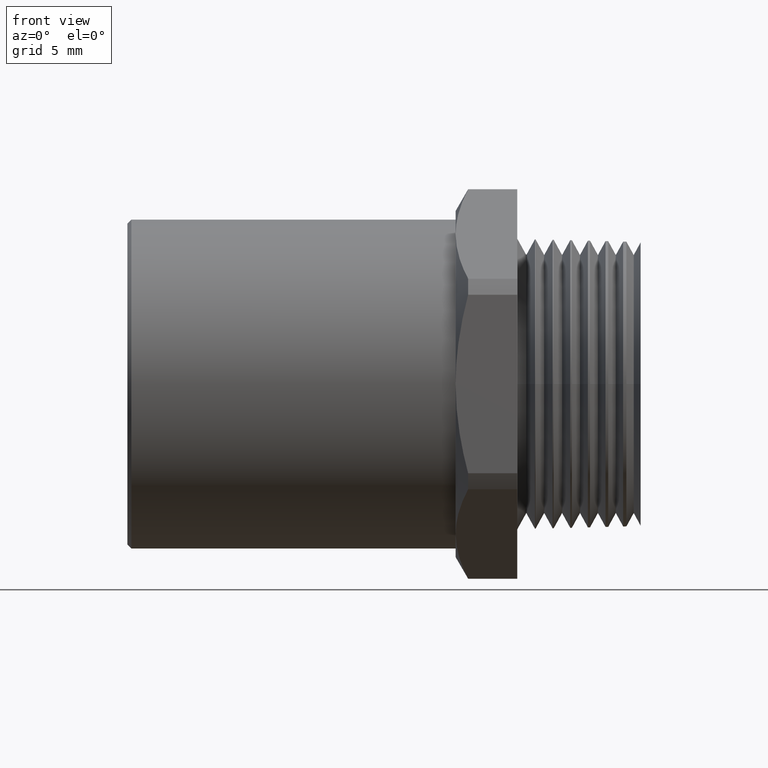
[diagram: clean part render]
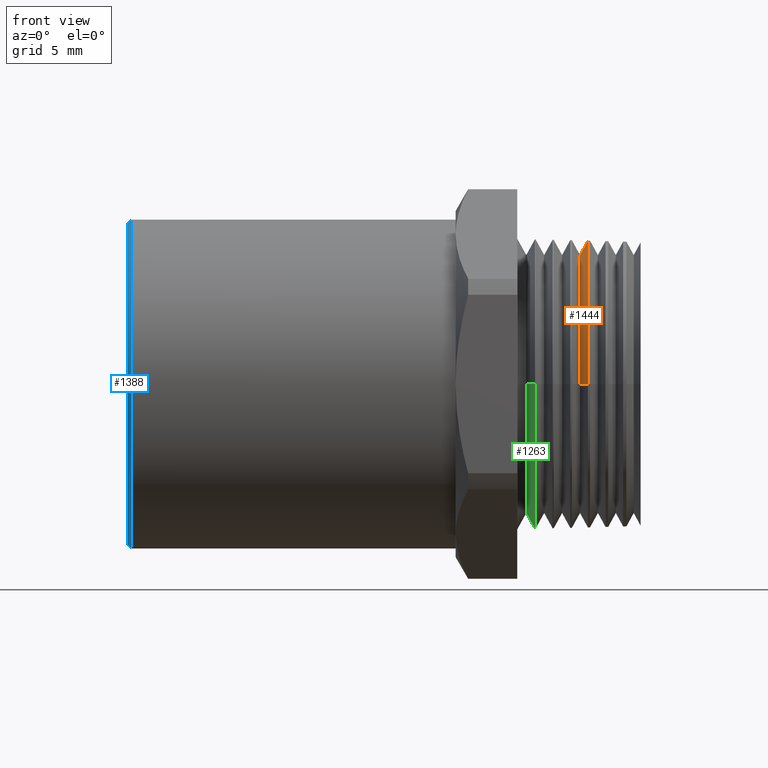
[diagram: same view with three faces highlighted in distinct colors, each labeled with its STEP entity id]
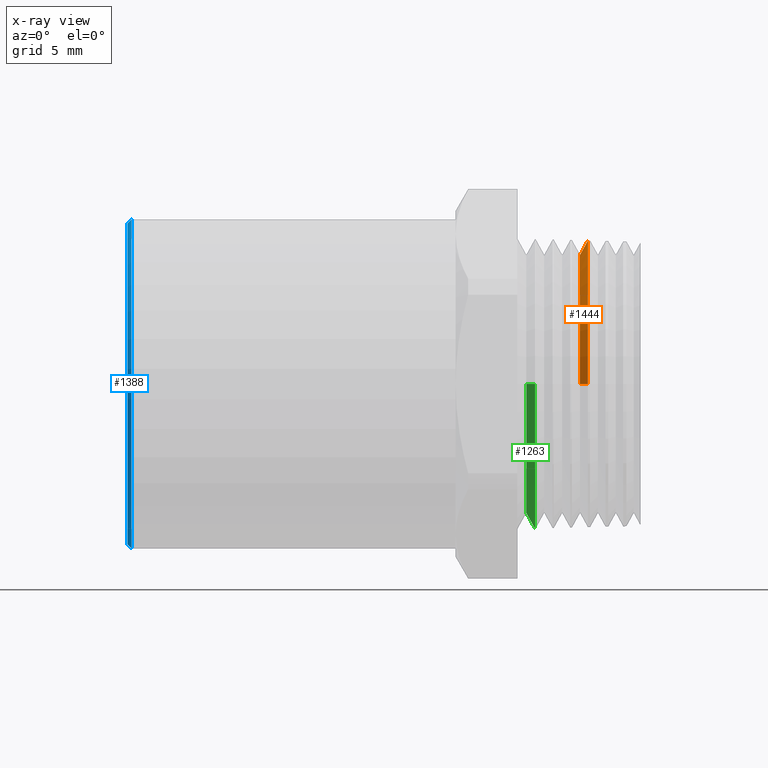
[diagram: x-ray of the same camera — body ghosted, the three highlighted faces saturated]
A machine part, front view with three faces highlighted in distinct colors.
The next image is the same camera in x-ray (body ghosted, the three faces saturated) — at least one of them is partly hidden behind the body in this view.
Their STEP definitions:

[orange] entity #1444 — the highlighted conical surface has half-angle 60 deg.
#1418 = EDGE_CURVE ( 'NONE', #1443, #1437, #2061, .T. ) ;
#1437 = VERTEX_POINT ( 'NONE', #2080 ) ;
#1443 = VERTEX_POINT ( 'NONE', #2135 ) ;
#1444 = ADVANCED_FACE ( 'NONE', ( #2134 ), #2132, .T. ) ;
#1445 = EDGE_LOOP ( 'NONE', ( #1447, #1469, #1479, #1471, #1476 ) ) ;
#1447 = ORIENTED_EDGE ( 'NONE', *, *, #1418, .T. ) ;
#1466 = EDGE_CURVE ( 'NONE', #1473, #1468, #2162, .T. ) ;
#1467 = VERTEX_POINT ( 'NONE', #2158 ) ;
#1468 = VERTEX_POINT ( 'NONE', #2157 ) ;
#1469 = ORIENTED_EDGE ( 'NONE', *, *, #1480, .T. ) ;
#1471 = ORIENTED_EDGE ( 'NONE', *, *, #1466, .F. ) ;
#1472 = EDGE_CURVE ( 'NONE', #1443, #1473, #2152, .T. ) ;
#1473 = VERTEX_POINT ( 'NONE', #2148 ) ;
#1475 = EDGE_CURVE ( 'NONE', #1468, #1467, #2147, .T. ) ;
#1476 = ORIENTED_EDGE ( 'NONE', *, *, #1472, .F. ) ;
#1479 = ORIENTED_EDGE ( 'NONE', *, *, #1475, .F. ) ;
#1480 = EDGE_CURVE ( 'NONE', #1437, #1467, #2207, .T. ) ;
#2053 = DIRECTION ( 'NONE',  ( 5.238726553505155800E-017, 1.000000000000000000, 0.0000000000000000000 ) ) ;
#2054 = DIRECTION ( 'NONE',  ( 1.000000000000000000, -3.789761643835506200E-017, 0.0000000000000000000 ) ) ;
#2055 = CARTESIAN_POINT ( 'NONE',  ( -0.1524370674708086500, -5.198673573259384000E-017, 0.0000000000000000000 ) ) ;
#2056 = AXIS2_PLACEMENT_3D ( 'NONE', #2055, #2054, #2053 ) ;
#2061 = CIRCLE ( 'NONE', #2056, 0.3259198544916922000 ) ;
#2080 = CARTESIAN_POINT ( 'NONE',  ( -0.1524370674708086800, -0.3259198544916922500, 0.0000000000000000000 ) ) ;
#2129 = DIRECTION ( 'NONE',  ( 5.238726553505155800E-017, 1.000000000000000000, 0.0000000000000000000 ) ) ;
#2130 = DIRECTION ( 'NONE',  ( 1.000000000000000000, -3.789761643835506200E-017, 0.0000000000000000000 ) ) ;
#2131 = AXIS2_PLACEMENT_3D ( 'NONE', #2133, #2130, #2129 ) ;
#2132 = CONICAL_SURFACE ( 'NONE', #2131, 0.3259198544916922000, 1.047197551196604700 ) ;
#2133 = CARTESIAN_POINT ( 'NONE',  ( -0.1524370674708086500, -5.198673573259384000E-017, 0.0000000000000000000 ) ) ;
#2134 = FACE_OUTER_BOUND ( 'NONE', #1445, .T. ) ;
#2135 = CARTESIAN_POINT ( 'NONE',  ( -0.1524370674708086200, 0.3259198544916921400, 4.208685419294223900E-017 ) ) ;
#2143 = DIRECTION ( 'NONE',  ( 4.738139246407625500E-017, 1.000000000000000000, 0.0000000000000000000 ) ) ;
#2144 = DIRECTION ( 'NONE',  ( 1.000000000000000000, -3.789761643835506200E-017, 0.0000000000000000000 ) ) ;
#2145 = CARTESIAN_POINT ( 'NONE',  ( -0.1325568008743854000, 0.0000000000000000000, 0.0000000000000000000 ) ) ;
#2146 = AXIS2_PLACEMENT_3D ( 'NONE', #2145, #2144, #2143 ) ;
#2147 = CIRCLE ( 'NONE', #2146, 0.3603534863047110900 ) ;
#2148 = CARTESIAN_POINT ( 'NONE',  ( -0.1325568008743853700, 0.3603534863047122000, 0.0000000000000000000 ) ) ;
#2149 = DIRECTION ( 'NONE',  ( 0.4999999999999939500, 0.8660254037844420400, 0.0000000000000000000 ) ) ;
#2150 = VECTOR ( 'NONE', #2149, 39.37007874015748900 ) ;
#2151 = CARTESIAN_POINT ( 'NONE',  ( -0.1524370674708086200, 0.3259198544916921400, 0.0000000000000000000 ) ) ;
#2152 = LINE ( 'NONE', #2151, #2150 ) ;
#2157 = CARTESIAN_POINT ( 'NONE',  ( -0.1325568008743854000, 0.0000000000000000000, 0.3603534863047111500 ) ) ;
#2158 = CARTESIAN_POINT ( 'NONE',  ( -0.1325568008743854000, -0.3603534863047123100, 4.413057435646553700E-017 ) ) ;
#2159 = DIRECTION ( 'NONE',  ( 4.738139246407625500E-017, 1.000000000000000000, 0.0000000000000000000 ) ) ;
#2160 = DIRECTION ( 'NONE',  ( 1.000000000000000000, -3.789761643835506200E-017, 0.0000000000000000000 ) ) ;
#2161 = AXIS2_PLACEMENT_3D ( 'NONE', #2167, #2160, #2159 ) ;
#2162 = CIRCLE ( 'NONE', #2161, 0.3603534863047110900 ) ;
#2167 = CARTESIAN_POINT ( 'NONE',  ( -0.1325568008743854000, 0.0000000000000000000, 0.0000000000000000000 ) ) ;
#2204 = DIRECTION ( 'NONE',  ( 0.4999999999999938400, -0.8660254037844422600, 1.060575238724911200E-016 ) ) ;
#2205 = VECTOR ( 'NONE', #2204, 39.37007874015748100 ) ;
#2206 = CARTESIAN_POINT ( 'NONE',  ( -0.1524370674708086800, -0.3259198544916922500, 3.991367065818219200E-017 ) ) ;
#2207 = LINE ( 'NONE', #2206, #2205 ) ;

[blue] entity #1388 — the highlighted conical surface has half-angle 45 deg.
#800 = DIRECTION ( 'NONE',  ( 0.7071067811865571200, 0.0000000000000000000, -0.7071067811865378000 ) ) ;
#801 = VECTOR ( 'NONE', #800, 39.37007874015748900 ) ;
#802 = CARTESIAN_POINT ( 'NONE',  ( -1.289999999999999600, 0.0000000000000000000, -0.4032500000000003900 ) ) ;
#807 = LINE ( 'NONE', #802, #801 ) ;
#1009 = EDGE_CURVE ( 'NONE', #1497, #1483, #807, .T. ) ;
#1164 = EDGE_CURVE ( 'NONE', #1497, #1493, #1725, .T. ) ;
#1196 = EDGE_CURVE ( 'NONE', #1490, #1483, #1777, .T. ) ;
#1374 = ORIENTED_EDGE ( 'NONE', *, *, #1009, .T. ) ;
#1382 = ORIENTED_EDGE ( 'NONE', *, *, #1491, .F. ) ;
#1383 = ORIENTED_EDGE ( 'NONE', *, *, #1164, .F. ) ;
#1388 = ADVANCED_FACE ( 'NONE', ( #1993 ), #1992, .T. ) ;
#1391 = EDGE_LOOP ( 'NONE', ( #1382, #1383, #1374, #1442 ) ) ;
#1442 = ORIENTED_EDGE ( 'NONE', *, *, #1196, .F. ) ;
#1483 = VERTEX_POINT ( 'NONE', #2197 ) ;
#1490 = VERTEX_POINT ( 'NONE', #2179 ) ;
#1491 = EDGE_CURVE ( 'NONE', #1493, #1490, #2177, .T. ) ;
#1493 = VERTEX_POINT ( 'NONE', #2215 ) ;
#1497 = VERTEX_POINT ( 'NONE', #2214 ) ;
#1721 = DIRECTION ( 'NONE',  ( 0.0000000000000000000, 0.0000000000000000000, -1.000000000000000000 ) ) ;
#1722 = DIRECTION ( 'NONE',  ( -1.000000000000000000, 0.0000000000000000000, 0.0000000000000000000 ) ) ;
#1723 = CARTESIAN_POINT ( 'NONE',  ( -1.289999999999999600, 0.0000000000000000000, 0.0000000000000000000 ) ) ;
#1724 = AXIS2_PLACEMENT_3D ( 'NONE', #1723, #1722, #1721 ) ;
#1725 = CIRCLE ( 'NONE', #1724, 0.4032500000000003900 ) ;
#1773 = DIRECTION ( 'NONE',  ( 0.0000000000000000000, 0.0000000000000000000, -1.000000000000000000 ) ) ;
#1774 = DIRECTION ( 'NONE',  ( 1.000000000000000000, 0.0000000000000000000, 0.0000000000000000000 ) ) ;
#1775 = CARTESIAN_POINT ( 'NONE',  ( -1.279999999999999800, 0.0000000000000000000, 0.0000000000000000000 ) ) ;
#1776 = AXIS2_PLACEMENT_3D ( 'NONE', #1775, #1774, #1773 ) ;
#1777 = CIRCLE ( 'NONE', #1776, 0.4132500000000000100 ) ;
#1988 = DIRECTION ( 'NONE',  ( 0.0000000000000000000, 0.0000000000000000000, -1.000000000000000000 ) ) ;
#1989 = DIRECTION ( 'NONE',  ( 1.000000000000000000, 0.0000000000000000000, 0.0000000000000000000 ) ) ;
#1990 = CARTESIAN_POINT ( 'NONE',  ( -1.289999999999999600, 0.0000000000000000000, 0.0000000000000000000 ) ) ;
#1991 = AXIS2_PLACEMENT_3D ( 'NONE', #1990, #1989, #1988 ) ;
#1992 = CONICAL_SURFACE ( 'NONE', #1991, 0.4032500000000003900, 0.7853981633974346200 ) ;
#1993 = FACE_OUTER_BOUND ( 'NONE', #1391, .T. ) ;
#2174 = DIRECTION ( 'NONE',  ( 0.7071067811865571200, 8.659560562354815800E-017, 0.7071067811865378000 ) ) ;
#2175 = VECTOR ( 'NONE', #2174, 39.37007874015748900 ) ;
#2176 = CARTESIAN_POINT ( 'NONE',  ( -1.289999999999999600, 4.938388217561706600E-017, 0.4032500000000003900 ) ) ;
#2177 = LINE ( 'NONE', #2176, #2175 ) ;
#2179 = CARTESIAN_POINT ( 'NONE',  ( -1.279999999999999800, 0.0000000000000000000, 0.4132500000000000100 ) ) ;
#2197 = CARTESIAN_POINT ( 'NONE',  ( -1.279999999999999800, 5.060852897476437300E-017, -0.4132500000000000100 ) ) ;
#2214 = CARTESIAN_POINT ( 'NONE',  ( -1.289999999999999600, 0.0000000000000000000, -0.4032500000000003900 ) ) ;
#2215 = CARTESIAN_POINT ( 'NONE',  ( -1.289999999999999600, 4.999620557519071600E-017, 0.4032500000000003900 ) ) ;

[green] entity #1263 — the highlighted conical surface has half-angle 60 deg.
#1066 = EDGE_CURVE ( 'NONE', #1404, #1420, #1514, .T. ) ;
#1243 = ORIENTED_EDGE ( 'NONE', *, *, #1306, .T. ) ;
#1250 = ORIENTED_EDGE ( 'NONE', *, *, #1066, .F. ) ;
#1252 = ORIENTED_EDGE ( 'NONE', *, *, #1460, .F. ) ;
#1253 = ORIENTED_EDGE ( 'NONE', *, *, #1261, .T. ) ;
#1257 = ORIENTED_EDGE ( 'NONE', *, *, #1400, .F. ) ;
#1260 = EDGE_LOOP ( 'NONE', ( #1257, #1253, #1243, #1252, #1250 ) ) ;
#1261 = EDGE_CURVE ( 'NONE', #1398, #1406, #1845, .T. ) ;
#1263 = ADVANCED_FACE ( 'NONE', ( #1840 ), #1839, .T. ) ;
#1301 = VERTEX_POINT ( 'NONE', #1905 ) ;
#1306 = EDGE_CURVE ( 'NONE', #1406, #1301, #1904, .T. ) ;
#1398 = VERTEX_POINT ( 'NONE', #2041 ) ;
#1400 = EDGE_CURVE ( 'NONE', #1398, #1404, #2040, .T. ) ;
#1404 = VERTEX_POINT ( 'NONE', #2032 ) ;
#1406 = VERTEX_POINT ( 'NONE', #2031 ) ;
#1420 = VERTEX_POINT ( 'NONE', #2051 ) ;
#1460 = EDGE_CURVE ( 'NONE', #1420, #1301, #2113, .T. ) ;
#1511 = DIRECTION ( 'NONE',  ( 0.0000000000000000000, 1.000000000000000000, 0.0000000000000000000 ) ) ;
#1512 = DIRECTION ( 'NONE',  ( 1.000000000000000000, -3.789761643835506200E-017, 0.0000000000000000000 ) ) ;
#1513 = AXIS2_PLACEMENT_3D ( 'NONE', #1520, #1512, #1511 ) ;
#1514 = CIRCLE ( 'NONE', #1513, 0.3638359364717692100 ) ;
#1520 = CARTESIAN_POINT ( 'NONE',  ( -0.2655462073329956100, -4.770016893442441800E-017, 0.0000000000000000000 ) ) ;
#1835 = DIRECTION ( 'NONE',  ( 0.0000000000000000000, 1.000000000000000000, 0.0000000000000000000 ) ) ;
#1836 = DIRECTION ( 'NONE',  ( 1.000000000000000000, -3.789761643835506200E-017, 0.0000000000000000000 ) ) ;
#1837 = CARTESIAN_POINT ( 'NONE',  ( -0.2874370674708086600, -4.687055751341590700E-017, 0.0000000000000000000 ) ) ;
#1838 = AXIS2_PLACEMENT_3D ( 'NONE', #1837, #1836, #1835 ) ;
#1839 = CONICAL_SURFACE ( 'NONE', #1838, 0.3259198544916922000, 1.047197551196604700 ) ;
#1840 = FACE_OUTER_BOUND ( 'NONE', #1260, .T. ) ;
#1841 = DIRECTION ( 'NONE',  ( 0.0000000000000000000, 1.000000000000000000, 0.0000000000000000000 ) ) ;
#1842 = DIRECTION ( 'NONE',  ( 1.000000000000000000, -3.789761643835506200E-017, 0.0000000000000000000 ) ) ;
#1843 = CARTESIAN_POINT ( 'NONE',  ( -0.2874370674708086600, -4.687055751341590700E-017, 0.0000000000000000000 ) ) ;
#1844 = AXIS2_PLACEMENT_3D ( 'NONE', #1843, #1842, #1841 ) ;
#1845 = CIRCLE ( 'NONE', #1844, 0.3259198544916922000 ) ;
#1901 = DIRECTION ( 'NONE',  ( 0.4999999999999939500, 0.8660254037844420400, 0.0000000000000000000 ) ) ;
#1902 = VECTOR ( 'NONE', #1901, 39.37007874015748900 ) ;
#1903 = CARTESIAN_POINT ( 'NONE',  ( -0.2874370674708086600, 0.3259198544916921400, 0.0000000000000000000 ) ) ;
#1904 = LINE ( 'NONE', #1903, #1902 ) ;
#1905 = CARTESIAN_POINT ( 'NONE',  ( -0.2655462073329956100, 0.3638359364717690900, 0.0000000000000000000 ) ) ;
#2031 = CARTESIAN_POINT ( 'NONE',  ( -0.2874370674708086600, 0.3259198544916921400, 4.230663941353030100E-017 ) ) ;
#2032 = CARTESIAN_POINT ( 'NONE',  ( -0.2655462073329956100, -0.3638359364717692600, 4.455705150149318100E-017 ) ) ;
#2037 = DIRECTION ( 'NONE',  ( 0.4999999999999938400, -0.8660254037844422600, 1.060575238724911200E-016 ) ) ;
#2038 = VECTOR ( 'NONE', #2037, 39.37007874015748100 ) ;
#2039 = CARTESIAN_POINT ( 'NONE',  ( -0.2874370674708086600, -0.3259198544916922500, 3.991367065818219200E-017 ) ) ;
#2040 = LINE ( 'NONE', #2039, #2038 ) ;
#2041 = CARTESIAN_POINT ( 'NONE',  ( -0.2874370674708086600, -0.3259198544916922500, 0.0000000000000000000 ) ) ;
#2051 = CARTESIAN_POINT ( 'NONE',  ( -0.2655462073329956100, 4.455705150149315600E-017, -0.3638359364717689800 ) ) ;
#2110 = DIRECTION ( 'NONE',  ( 0.0000000000000000000, 1.000000000000000000, 0.0000000000000000000 ) ) ;
#2111 = DIRECTION ( 'NONE',  ( 1.000000000000000000, -3.789761643835506200E-017, 0.0000000000000000000 ) ) ;
#2112 = AXIS2_PLACEMENT_3D ( 'NONE', #2119, #2111, #2110 ) ;
#2113 = CIRCLE ( 'NONE', #2112, 0.3638359364717692100 ) ;
#2119 = CARTESIAN_POINT ( 'NONE',  ( -0.2655462073329956100, -4.770016893442441800E-017, 0.0000000000000000000 ) ) ;